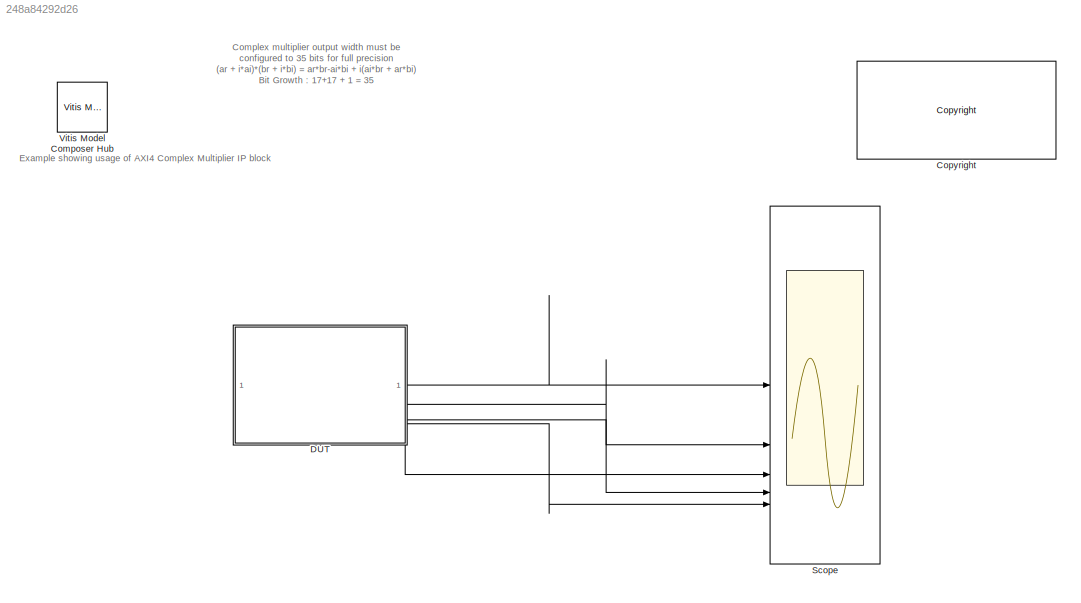
MODEL slx_248a84292d26
KIND model
CONFIG AbsTol = auto
CONFIG EnableMultiTasking = on
CONFIG FixedStep = auto
CONFIG MaxStep = auto
CONFIG MinStep = auto
CONFIG RelTol = 1e-3
CONFIG SampleTimeConstraint = Unconstrained
CONFIG SolverName = VariableStepDiscrete
CONFIG StartTime = 0.0
CONFIG StopTime = 600
BLOCK [Reference] <copyright redacted>
  SourceBlock = hdlUtilities/<copyright redacted>
  SourceType = Xilinx <copyright redacted>
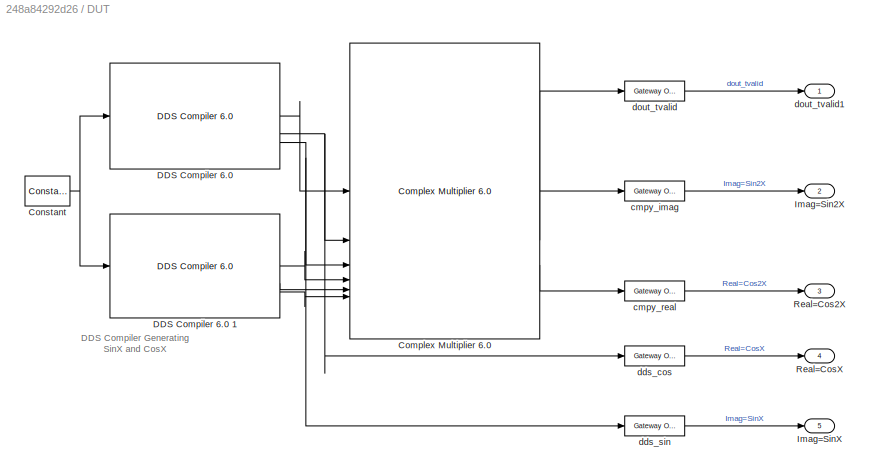
BLOCK [SubSystem] DUT
BLOCK [Reference] DUT/Complex Multiplier 6.0   REF=hdlDSPIP/Complex Multiplier 6.0 
  SourceBlock = hdlDSPIP/Complex Multiplier 6.0
  SourceType = Complex Multiplier 6.0  Block
BLOCK [Reference] DUT/Constant  REF=hdlBasic/Constant
  SourceBlock = hdlBasic/Constant
  SourceType = Constant Block Block
BLOCK [Reference] DUT/DDS Compiler 6.0   REF=hdlDSPIP/DDS Compiler 6.0 
  SourceBlock = hdlDSPIP/DDS Compiler 6.0
  SourceType = DDS Compiler 6.0 Block
BLOCK [Reference] DUT/DDS Compiler 6.0 1  REF=hdlDSPIP/DDS Compiler 6.0 
  SourceBlock = hdlDSPIP/DDS Compiler 6.0
  SourceType = DDS Compiler 6.0 Block
BLOCK [Outport] DUT/Imag=Sin2X
  Port = 2
BLOCK [Outport] DUT/Imag=SinX
  Port = 5
BLOCK [Outport] DUT/Real=Cos2X
  Port = 3
BLOCK [Outport] DUT/Real=CosX
  Port = 4
BLOCK [Reference] DUT/cmpy_imag  REF=hdlBasic/Gateway Out
  SourceBlock = hdlBasic/Gateway Out
  SourceType = Gateway Out Block
BLOCK [Reference] DUT/cmpy_real  REF=hdlBasic/Gateway Out
  SourceBlock = hdlBasic/Gateway Out
  SourceType = Gateway Out Block
BLOCK [Reference] DUT/dds_cos  REF=hdlBasic/Gateway Out
  SourceBlock = hdlBasic/Gateway Out
  SourceType = Gateway Out Block
BLOCK [Reference] DUT/dds_sin  REF=hdlBasic/Gateway Out
  SourceBlock = hdlBasic/Gateway Out
  SourceType = Gateway Out Block
BLOCK [Reference] DUT/dout_tvalid  REF=hdlBasic/Gateway Out
  SourceBlock = hdlBasic/Gateway Out
  SourceType = Gateway Out Block
BLOCK [Outport] DUT/dout_tvalid1
BLOCK [Scope] Scope
  Floating = off
  NumInputPorts = 5
  ScopeSpecificationString = Simulink.scopes.TimeScopeBlockCfg('CurrentConfiguration', extmgr.ConfigurationSet(extmgr.Configuration('Core','General UI',true),extmgr.Configuration('Sources','WiredSimulink',true,'DataLoggingLimitDataPoints',true,'DataLoggingDecimateData',true,'DataLoggingDecimation','1','DataLoggingSaveFormat','Structure With Time'),extmgr.Configuration('Visuals','Time Domain',true,'SerializedDisplays',{struct(...<+4594ch>
BLOCK [Reference] Vitis Model Composer Hub  REF=vmcUtilities/Vitis Model Composer Hub
  SourceBlock = vmcUtilities/Vitis Model Composer Hub
  SourceType = VMC Hub
  Tag = genX
  UserDataPersistent = on
ANNOTATION (root): Complex multiplier output width must be configured to 35 bits for full precision (ar + i*ai)*(br + i*bi) = ar*br-ai*bi + i(ai*br + ar*bi) Bit Growth : 17+17 + 1 = 35
ANNOTATION (root): Example showing usage of AXI4 Complex Multiplier IP block
ANNOTATION DUT: DDS Compiler Generating SinX and CosX
LINE DUT/Complex Multiplier 6.0 :1 -> DUT/dout_tvalid:1
LINE DUT/Complex Multiplier 6.0 :2 -> DUT/cmpy_imag:1
LINE DUT/Complex Multiplier 6.0 :3 -> DUT/cmpy_real:1
NET DUT/Constant:1 -> DUT/DDS Compiler 6.0 1:1, DUT/DDS Compiler 6.0 :1
LINE DUT/DDS Compiler 6.0 1:1 -> DUT/Complex Multiplier 6.0 :4
LINE DUT/DDS Compiler 6.0 1:2 -> DUT/Complex Multiplier 6.0 :5
LINE DUT/DDS Compiler 6.0 1:3 -> DUT/Complex Multiplier 6.0 :6
LINE DUT/DDS Compiler 6.0 :1 -> DUT/Complex Multiplier 6.0 :1
NET DUT/DDS Compiler 6.0 :2 -> DUT/Complex Multiplier 6.0 :2, DUT/dds_cos:1
NET DUT/DDS Compiler 6.0 :3 -> DUT/Complex Multiplier 6.0 :3, DUT/dds_sin:1
LINE DUT/cmpy_imag:1 -> DUT/Imag=Sin2X:1
LINE DUT/cmpy_real:1 -> DUT/Real=Cos2X:1
LINE DUT/dds_cos:1 -> DUT/Real=CosX:1
LINE DUT/dds_sin:1 -> DUT/Imag=SinX:1
LINE DUT/dout_tvalid:1 -> DUT/dout_tvalid1:1
LINE DUT:1 -> Scope:1
LINE DUT:2 -> Scope:2
LINE DUT:3 -> Scope:3
LINE DUT:4 -> Scope:4
LINE DUT:5 -> Scope:5
note: NET lines group one-source signal fan-out (src -> all destinations, sorted); 1:1 wires keep LINE
